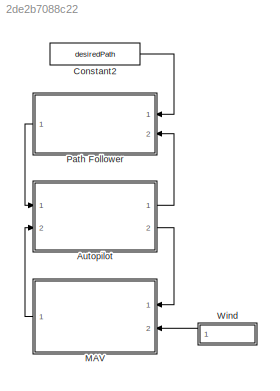
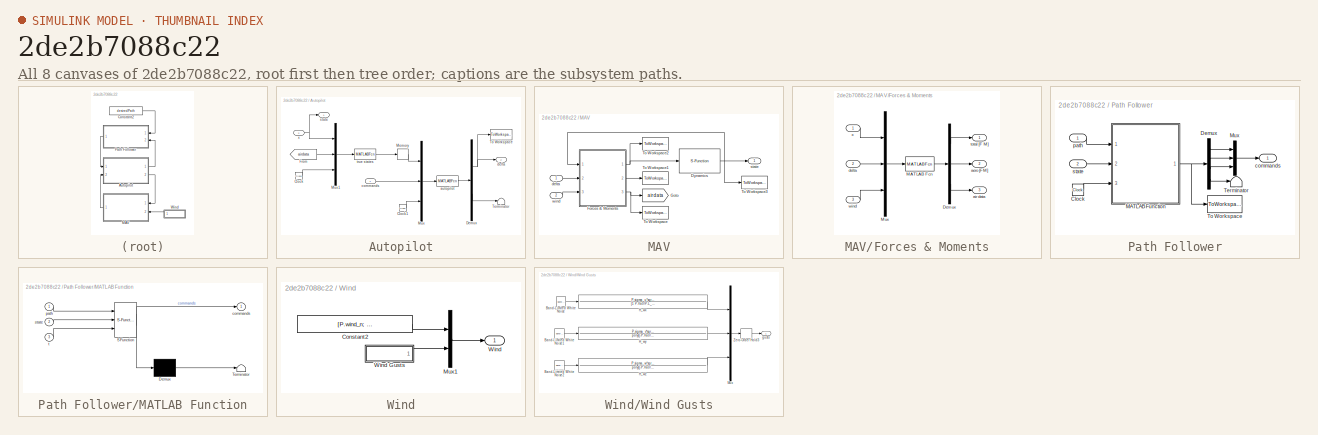
[diagram: thumbnail index - all 8 canvases of the model, root first then tree order]
MODEL slx_2de2b7088c22
KIND model
CONFIG AbsTol = auto
CONFIG EnableMultiTasking = off
CONFIG FixedStep = P.Ts
CONFIG MaxStep = auto
CONFIG MinStep = auto
CONFIG RelTol = 1e-3
CONFIG SampleTimeConstraint = Unconstrained
CONFIG Solver = ode4
CONFIG SolverName = ode4
CONFIG StartTime = 0.0
CONFIG StopTime = 100
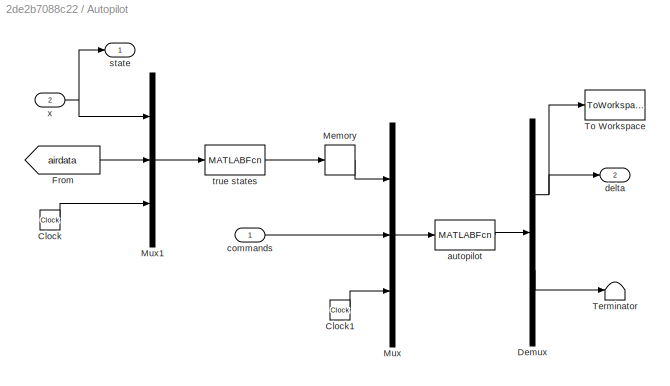
BLOCK [SubSystem] Autopilot
  Ports = [2, 2]
  RequestExecContextInheritance = off
BLOCK [Clock] Autopilot/Clock
BLOCK [Clock] Autopilot/Clock1
BLOCK [Demux] Autopilot/Demux
  DisplayOption = bar
  Outputs = [4;2]
  Ports = [1, 2]
BLOCK [From] Autopilot/From
  GotoTag = airdata
  TagVisibility = global
BLOCK [Memory] Autopilot/Memory
BLOCK [Mux] Autopilot/Mux
  DisplayOption = bar
  Inputs = 3
  Ports = [3, 1]
BLOCK [Mux] Autopilot/Mux1
  DisplayOption = bar
  Inputs = 3
  Ports = [3, 1]
BLOCK [Terminator] Autopilot/Terminator
BLOCK [ToWorkspace] Autopilot/To Workspace
  FixptAsFi = on
  MaxDataPoints = inf
  Ports = [1]
  SampleTime = -1
  VariableName = deltaWs
BLOCK [MATLABFcn] Autopilot/autopilot
  MATLABFcn = autopilot(u,P)
  OutputDimensions = 4+2
  Ports = [1, 1]
  SampleTime = P.Ts
BLOCK [Inport] Autopilot/commands
  IconDisplay = Port number
BLOCK [Outport] Autopilot/delta
  IconDisplay = Port number
  Port = 2
BLOCK [Outport] Autopilot/state
  IconDisplay = Port number
BLOCK [MATLABFcn] Autopilot/true states
  MATLABFcn = true_states(u,P)
  OutputDimensions = 19
  Ports = [1, 1]
  SampleTime = P.Ts
BLOCK [Inport] Autopilot/x
  IconDisplay = Port number
  Port = 2
BLOCK [Constant] Constant2
  Value = desiredPath
BLOCK [SubSystem] MAV
  Ports = [2, 1]
  RequestExecContextInheritance = off
BLOCK [S-Function] MAV/Dynamics
  EnableBusSupport = off
  FunctionName = mav_dynamics
  Parameters = P
  Ports = [1, 1]
  SFcnIsStateOwnerBlock = off
  SFunctionDeploymentMode = off
BLOCK [SubSystem] MAV/Forces & Moments
  Ports = [3, 3]
  RequestExecContextInheritance = off
BLOCK [Demux] MAV/Forces & Moments/Demux
  DisplayOption = bar
  Outputs = [6;6;7]
  Ports = [1, 3]
BLOCK [MATLABFcn] MAV/Forces & Moments/MATLAB Fcn
  MATLABFcn = forces_moments(u(1:12),u(13:16),u(17:22),P)
  OutputDimensions = 19
  Ports = [1, 1]
BLOCK [Mux] MAV/Forces & Moments/Mux
  DisplayOption = bar
  Inputs = 3
  Ports = [3, 1]
BLOCK [Outport] MAV/Forces & Moments/aero [FM]
  IconDisplay = Port number
  Port = 2
BLOCK [Outport] MAV/Forces & Moments/air data
  IconDisplay = Port number
  Port = 3
BLOCK [Inport] MAV/Forces & Moments/delta
  IconDisplay = Port number
  Port = 2
BLOCK [Outport] MAV/Forces & Moments/total [F M]
  IconDisplay = Port number
BLOCK [Inport] MAV/Forces & Moments/wind
  IconDisplay = Port number
  Port = 3
BLOCK [Inport] MAV/Forces & Moments/x
  IconDisplay = Port number
BLOCK [Goto] MAV/Goto
  GotoTag = airdata
  TagVisibility = global
BLOCK [ToWorkspace] MAV/To Workspace
  FixptAsFi = on
  MaxDataPoints = inf
  Ports = [1]
  SampleTime = -1
  VariableName = airdataWs
BLOCK [ToWorkspace] MAV/To Workspace1
  FixptAsFi = on
  MaxDataPoints = inf
  Ports = [1]
  SampleTime = -1
  VariableName = aeroFMWs
BLOCK [ToWorkspace] MAV/To Workspace2
  FixptAsFi = on
  MaxDataPoints = inf
  Ports = [1]
  SampleTime = -1
  VariableName = FMWs
BLOCK [ToWorkspace] MAV/To Workspace3
  FixptAsFi = on
  MaxDataPoints = inf
  Ports = [1]
  SampleTime = -1
  VariableName = stateWs
BLOCK [Inport] MAV/delta
  IconDisplay = Port number
BLOCK [Outport] MAV/state
  IconDisplay = Port number
BLOCK [Inport] MAV/wind
  IconDisplay = Port number
  Port = 2
BLOCK [SubSystem] Path Follower
  Ports = [2, 1]
  RequestExecContextInheritance = off
BLOCK [Clock] Path Follower/Clock
BLOCK [Demux] Path Follower/Demux
  DisplayOption = bar
  Ports = [1, 4]
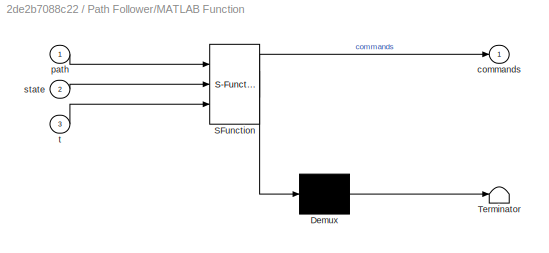
BLOCK [SubSystem] Path Follower/MATLAB Function
  ErrorFcn = Stateflow.Translate.translate
  PermitHierarchicalResolution = ExplicitOnly
  Ports = [3, 1]
  RequestExecContextInheritance = off
  SFBlockType = MATLAB Function
  TreatAsAtomicUnit = on
BLOCK [Demux] Path Follower/MATLAB Function/ Demux 
  Outputs = 1
  Ports = [1, 1]
BLOCK [S-Function] Path Follower/MATLAB Function/ SFunction 
  EnableBusSupport = on
  FunctionName = sf_sfun
  Parameters = P
  PortCounts = [3 2]
  Ports = [3, 2]
  SFcnIsStateOwnerBlock = off
  SFunctionDeploymentMode = off
  Tag = Stateflow S-Function completePathFollower 2
BLOCK [Terminator] Path Follower/MATLAB Function/ Terminator 
BLOCK [Outport] Path Follower/MATLAB Function/commands
  IconDisplay = Port number
BLOCK [Inport] Path Follower/MATLAB Function/path
  IconDisplay = Port number
BLOCK [Inport] Path Follower/MATLAB Function/state
  IconDisplay = Port number
  Port = 2
BLOCK [Inport] Path Follower/MATLAB Function/t
  IconDisplay = Port number
  Port = 3
BLOCK [Mux] Path Follower/Mux
  DisplayOption = bar
  Inputs = 3
  Ports = [3, 1]
BLOCK [Terminator] Path Follower/Terminator
BLOCK [ToWorkspace] Path Follower/To Workspace
  FixptAsFi = on
  MaxDataPoints = inf
  Ports = [1]
  SampleTime = -1
  VariableName = commandsWs
BLOCK [Outport] Path Follower/commands
  IconDisplay = Port number
BLOCK [Inport] Path Follower/path
  IconDisplay = Port number
BLOCK [Inport] Path Follower/state
  IconDisplay = Port number
  Port = 2
BLOCK [SubSystem] Wind
  Ports = [0, 1]
  RequestExecContextInheritance = off
BLOCK [Constant] Wind/Constant2
  Value = [P.wind_n; P.wind_e; P.wind_d]
BLOCK [Mux] Wind/Mux1
  DisplayOption = bar
  Inputs = 2
  Ports = [2, 1]
BLOCK [Outport] Wind/Wind
  IconDisplay = Port number
BLOCK [SubSystem] Wind/Wind Gusts
  Ports = [0, 1]
  RequestExecContextInheritance = off
BLOCK [Reference] Wind/Wind Gusts/Band-Limited White Noise  REF=simulink/Sources/Band-Limited
White Noise
  Ports = [0, 1]
  SourceBlock = simulink/Sources/Band-Limited\nWhite Noise
  SourceProductBaseCode = SL
  SourceProductName = Simulink
  SourceType = Band-Limited White Noise.
BLOCK [Reference] Wind/Wind Gusts/Band-Limited White Noise1  REF=simulink/Sources/Band-Limited
White Noise
  Ports = [0, 1]
  SourceBlock = simulink/Sources/Band-Limited\nWhite Noise
  SourceProductBaseCode = SL
  SourceProductName = Simulink
  SourceType = Band-Limited White Noise.
BLOCK [Reference] Wind/Wind Gusts/Band-Limited White Noise2  REF=simulink/Sources/Band-Limited
White Noise
  Ports = [0, 1]
  SourceBlock = simulink/Sources/Band-Limited\nWhite Noise
  SourceProductBaseCode = SL
  SourceProductName = Simulink
  SourceType = Band-Limited White Noise.
BLOCK [TransferFcn] Wind/Wind Gusts/H_wx
  Denominator = [1 P.Va0/P.L_u]
  Numerator = P.sigma_u*sqrt(2*P.Va0/P.L_u)
BLOCK [TransferFcn] Wind/Wind Gusts/H_wy
  Denominator = poly([-P.Va0/P.L_v, -P.Va0/P.L_v])
  Numerator = P.sigma_v*sqrt(3*P.Va0/P.L_v)*[0, 1, P.Va0/sqrt(3)/P.L_v]
BLOCK [TransferFcn] Wind/Wind Gusts/H_wz
  Denominator = poly([-P.Va0/P.L_w, -P.Va0/P.L_w])
  Numerator = P.sigma_w*sqrt(3*P.Va0/P.L_w)*[0, 1, P.Va0/sqrt(3)/P.L_w]
BLOCK [Mux] Wind/Wind Gusts/Mux
  DisplayOption = bar
  Inputs = 3
  Ports = [3, 1]
BLOCK [ZeroOrderHold] Wind/Wind Gusts/Zero-Order Hold3
  SampleTime = P.Ts
BLOCK [Outport] Wind/Wind Gusts/gusts
  IconDisplay = Port number
LINE Autopilot/Clock1:1 -> Autopilot/Mux:3
LINE Autopilot/Clock:1 -> Autopilot/Mux1:3
NET Autopilot/Demux:1 -> Autopilot/To Workspace:1, Autopilot/delta:1
LINE Autopilot/Demux:2 -> Autopilot/Terminator:1
LINE Autopilot/From:1 -> Autopilot/Mux1:2
LINE Autopilot/Memory:1 -> Autopilot/Mux:1
LINE Autopilot/Mux1:1 -> Autopilot/true states:1
LINE Autopilot/Mux:1 -> Autopilot/autopilot:1
LINE Autopilot/autopilot:1 -> Autopilot/Demux:1
LINE Autopilot/commands:1 -> Autopilot/Mux:2
LINE Autopilot/true states:1 -> Autopilot/Memory:1
NET Autopilot/x:1 -> Autopilot/Mux1:1, Autopilot/state:1
LINE Autopilot:1 -> Path Follower:2
LINE Autopilot:2 -> MAV:1
LINE Constant2:1 -> Path Follower:1
NET MAV/Dynamics:1 -> MAV/Forces & Moments:1, MAV/To Workspace3:1, MAV/state:1
LINE MAV/Forces & Moments/Demux:1 -> MAV/Forces & Moments/total [F M]:1
LINE MAV/Forces & Moments/Demux:2 -> MAV/Forces & Moments/aero [FM]:1
LINE MAV/Forces & Moments/Demux:3 -> MAV/Forces & Moments/air data:1
LINE MAV/Forces & Moments/MATLAB Fcn:1 -> MAV/Forces & Moments/Demux:1
LINE MAV/Forces & Moments/Mux:1 -> MAV/Forces & Moments/MATLAB Fcn:1
LINE MAV/Forces & Moments/delta:1 -> MAV/Forces & Moments/Mux:2
LINE MAV/Forces & Moments/wind:1 -> MAV/Forces & Moments/Mux:3
LINE MAV/Forces & Moments/x:1 -> MAV/Forces & Moments/Mux:1
NET MAV/Forces & Moments:1 -> MAV/Dynamics:1, MAV/To Workspace2:1
LINE MAV/Forces & Moments:2 -> MAV/To Workspace1:1
NET MAV/Forces & Moments:3 -> MAV/Goto:1, MAV/To Workspace:1
LINE MAV/delta:1 -> MAV/Forces & Moments:2
LINE MAV/wind:1 -> MAV/Forces & Moments:3
LINE MAV:1 -> Autopilot:2
LINE Path Follower/Clock:1 -> Path Follower/MATLAB Function:3
LINE Path Follower/Demux:1 -> Path Follower/Mux:1
LINE Path Follower/Demux:2 -> Path Follower/Mux:2
LINE Path Follower/Demux:3 -> Path Follower/Mux:3
LINE Path Follower/Demux:4 -> Path Follower/Terminator:1
NET Path Follower/MATLAB Function:1 -> Path Follower/Demux:1, Path Follower/To Workspace:1
LINE Path Follower/Mux:1 -> Path Follower/commands:1
LINE Path Follower/path:1 -> Path Follower/MATLAB Function:1
LINE Path Follower/state:1 -> Path Follower/MATLAB Function:2
LINE Path Follower:1 -> Autopilot:1
LINE Wind/Constant2:1 -> Wind/Mux1:1
LINE Wind/Mux1:1 -> Wind/Wind:1
LINE Wind/Wind Gusts/Band-Limited White Noise1:1 -> Wind/Wind Gusts/H_wy:1
LINE Wind/Wind Gusts/Band-Limited White Noise2:1 -> Wind/Wind Gusts/H_wz:1
LINE Wind/Wind Gusts/Band-Limited White Noise:1 -> Wind/Wind Gusts/H_wx:1
LINE Wind/Wind Gusts/H_wx:1 -> Wind/Wind Gusts/Mux:1
LINE Wind/Wind Gusts/H_wy:1 -> Wind/Wind Gusts/Mux:2
LINE Wind/Wind Gusts/H_wz:1 -> Wind/Wind Gusts/Mux:3
LINE Wind/Wind Gusts/Mux:1 -> Wind/Wind Gusts/Zero-Order Hold3:1
LINE Wind/Wind Gusts/Zero-Order Hold3:1 -> Wind/Wind Gusts/gusts:1
LINE Wind/Wind Gusts:1 -> Wind/Mux1:2
LINE Wind:1 -> MAV:2
note: NET lines group one-source signal fan-out (src -> all destinations, sorted); 1:1 wires keep LINE
CHART Path Follower/MATLAB Function states=1 transitions=1
  STATE_LABEL 'eML_blk_kernel()'
  STATE_LABEL 'SCRIPT:\n% path follow\n%  - follow straight line path or orbit\n%\n% Modified:\n%\n% input is:\n%   flag - if flag==1, follow waypoint path\n%          if flag==2, follow orbit\n%   \n%   Va^d   - desired airspeed\n%   r      - inertial position of start of waypoint path\n%   q      - unit vector that defines inertial direction of waypoint path\n%   c      - center of orbit\n%   rho    - radius of orbit\n%   la...<+2514ch>'
